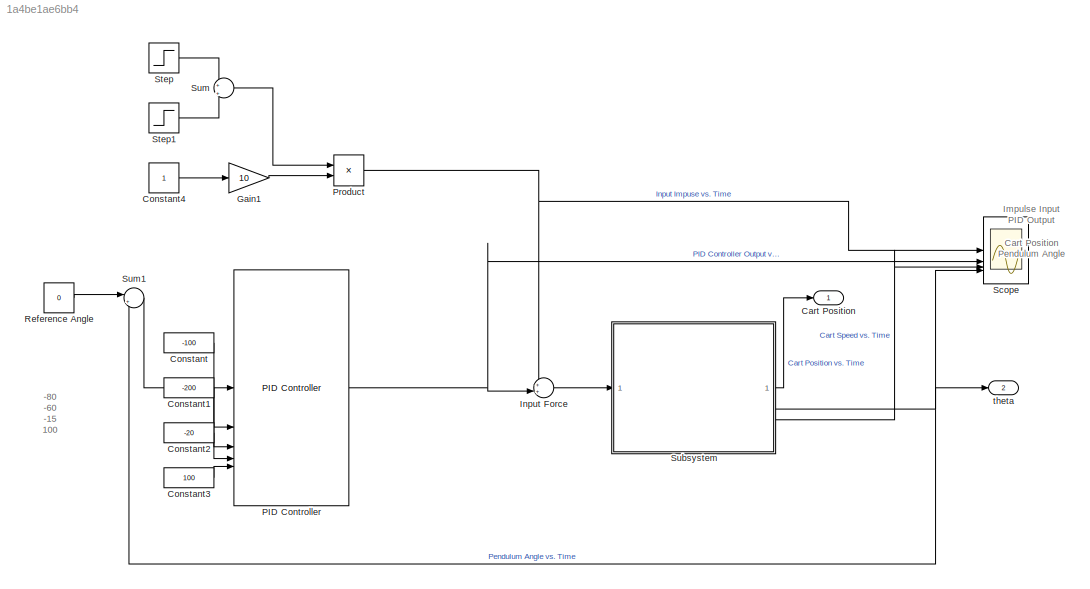
MODEL slx_1a4be1ae6bb4
KIND model
CONFIG AbsTol = 1e-3
CONFIG EnableMultiTasking = on
CONFIG FixedStep = auto
CONFIG MaxStep = 0.002
CONFIG MinStep = 0.001
CONFIG RelTol = 1e-3
CONFIG SampleTimeConstraint = Unconstrained
CONFIG SolverName = VariableStepAuto
CONFIG StartTime = 0.0
CONFIG StopTime = 10
BLOCK [Outport] Cart Position
BLOCK [Constant] Constant
  Value = -100
BLOCK [Constant] Constant1
  Value = -200
BLOCK [Constant] Constant2
  Value = -20
BLOCK [Constant] Constant3
  Value = 100
BLOCK [Constant] Constant4
BLOCK [Gain] Gain1
  Gain = 10
BLOCK [Sum] Input Force
  Inputs = ++|
BLOCK [Reference] PID Controller  REF=slpidlib/PID Controller
  LibrarySourceBlock = simulink/Continuous/PID Controller
  SourceBlock = slpidlib/PID Controller
  SourceType = PID 1dof
BLOCK [Product] Product
BLOCK [Constant] Reference Angle
  Value = 0
BLOCK [Scope] Scope
  Floating = off
  NumInputPorts = 4
  ScopeSpecificationString = Simulink.scopes.TimeScopeBlockCfg('CurrentConfiguration', extmgr.ConfigurationSet(extmgr.Configuration('Core','General UI',true,'FigureColor',[1 0.968627450980392 0.92156862745098]),extmgr.Configuration('Core','Source UI',true),extmgr.Configuration('Sources','WiredSimulink',true),extmgr.Configuration('Visuals','Time Domain',true,'TimeAxisLabels','All','SerializedDisplays',{struct('MinYLimReal','-0...<+4484ch>
BLOCK [Step] Step
  SampleTime = 0
BLOCK [Step] Step1
  After = -1
  SampleTime = 0
  Time = 1.5
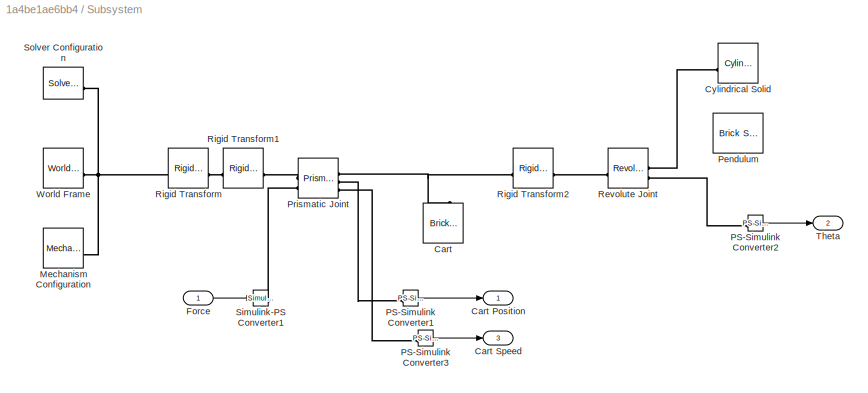
BLOCK [SubSystem] Subsystem
BLOCK [Reference] Subsystem/Cart  REF=sm_lib/Body Elements/Brick Solid
  SourceBlock = sm_lib/Body Elements/Brick Solid
  SourceType = Brick Solid
BLOCK [Outport] Subsystem/Cart Position
BLOCK [Outport] Subsystem/Cart Speed
  Port = 3
BLOCK [Reference] Subsystem/Cylindrical Solid  REF=sm_lib/Body Elements/Cylindrical Solid
  SourceBlock = sm_lib/Body Elements/Cylindrical Solid
  SourceType = Cylindrical Solid
BLOCK [Inport] Subsystem/Force
BLOCK [Reference] Subsystem/Mechanism Configuration  REF=sm_lib/Utilities/Mechanism
Configuration
  SourceBlock = sm_lib/Utilities/Mechanism\nConfiguration
  SourceType = Mechanism\nConfiguration
BLOCK [Reference] Subsystem/PS-Simulink Converter1  REF=nesl_utility/PS-Simulink
Converter
  SourceBlock = nesl_utility/PS-Simulink\nConverter
  SourceType = PS-Simulink\nConverter
BLOCK [Reference] Subsystem/PS-Simulink Converter2  REF=nesl_utility/PS-Simulink
Converter
  SourceBlock = nesl_utility/PS-Simulink\nConverter
  SourceType = PS-Simulink\nConverter
BLOCK [Reference] Subsystem/PS-Simulink Converter3  REF=nesl_utility/PS-Simulink
Converter
  SourceBlock = nesl_utility/PS-Simulink\nConverter
  SourceType = PS-Simulink\nConverter
BLOCK [Reference] Subsystem/Pendulum  REF=sm_lib/Body Elements/Brick Solid
  Commented = on
  SourceBlock = sm_lib/Body Elements/Brick Solid
  SourceType = Brick Solid
BLOCK [Reference] Subsystem/Prismatic Joint  REF=sm_lib/Joints/Prismatic
Joint
  SourceBlock = sm_lib/Joints/Prismatic\nJoint
  SourceType = Prismatic\nJoint
BLOCK [Reference] Subsystem/Revolute Joint  REF=sm_lib/Joints/Revolute Joint
  SourceBlock = sm_lib/Joints/Revolute Joint
  SourceType = Revolute Joint
BLOCK [Reference] Subsystem/Rigid Transform  REF=sm_lib/Frames and
Transforms/Rigid
Transform
  SourceBlock = sm_lib/Frames and\nTransforms/Rigid\nTransform
  SourceType = Rigid\nTransform
BLOCK [Reference] Subsystem/Rigid Transform1  REF=sm_lib/Frames and
Transforms/Rigid
Transform
  SourceBlock = sm_lib/Frames and\nTransforms/Rigid\nTransform
  SourceType = Rigid\nTransform
BLOCK [Reference] Subsystem/Rigid Transform2  REF=sm_lib/Frames and
Transforms/Rigid
Transform
  SourceBlock = sm_lib/Frames and\nTransforms/Rigid\nTransform
  SourceType = Rigid\nTransform
BLOCK [Reference] Subsystem/Simulink-PS Converter1  REF=nesl_utility/Simulink-PS
Converter
  SourceBlock = nesl_utility/Simulink-PS\nConverter
  SourceType = Simulink-PS\nConverter
BLOCK [Reference] Subsystem/Solver Configuration  REF=nesl_utility/Solver
Configuration
  SourceBlock = nesl_utility/Solver\nConfiguration
  SourceType = Solver\nConfiguration
BLOCK [Outport] Subsystem/Theta
  Port = 2
BLOCK [Reference] Subsystem/World Frame  REF=sm_lib/Frames and
Transforms/World Frame
  SourceBlock = sm_lib/Frames and\nTransforms/World Frame
  SourceType = World Frame
BLOCK [Sum] Sum
  Inputs = +|+
BLOCK [Sum] Sum1
  Inputs = |+-
BLOCK [Outport] theta
  Port = 2
ANNOTATION (root): -80 -60 -15 100
ANNOTATION (root): Impulse Input PID Output Cart Position Pendulum Angle
LINE Constant1:1 -> PID Controller:3
LINE Constant2:1 -> PID Controller:4
LINE Constant3:1 -> PID Controller:5
LINE Constant4:1 -> Gain1:1
LINE Constant:1 -> PID Controller:2
LINE Gain1:1 -> Product:2
LINE Input Force:1 -> Subsystem:1
NET PID Controller:1 -> Input Force:2, Scope:2
NET Product:1 -> Input Force:1, Scope:1
LINE Reference Angle:1 -> Sum1:1
LINE Step1:1 -> Sum:2
LINE Step:1 -> Sum:1
LINE Subsystem/Force:1 -> Subsystem/Simulink-PS Converter1:1
LINE Subsystem/PS-Simulink Converter1:1 -> Subsystem/Cart Position:1
LINE Subsystem/PS-Simulink Converter2:1 -> Subsystem/Theta:1
LINE Subsystem/PS-Simulink Converter3:1 -> Subsystem/Cart Speed:1
LINE Subsystem:1 -> Cart Position:1
NET Subsystem:2 -> Scope:4, Sum1:2, theta:1
LINE Subsystem:3 -> Scope:3
LINE Sum1:1 -> PID Controller:1
LINE Sum:1 -> Product:1
PNET net1: Subsystem/Cart:RConn1 -- Subsystem/Prismatic Joint:RConn1 -- Subsystem/Rigid Transform2:LConn1
PLINE Subsystem/Cylindrical Solid:LConn1 -- Subsystem/Revolute Joint:RConn1
PNET net2: Subsystem/Mechanism Configuration:RConn1 -- Subsystem/Rigid Transform:LConn1 -- Subsystem/Solver Configuration:RConn1 -- Subsystem/World Frame:RConn1
PLINE Subsystem/PS-Simulink Converter1:LConn1 -- Subsystem/Prismatic Joint:RConn2
PLINE Subsystem/PS-Simulink Converter2:LConn1 -- Subsystem/Revolute Joint:RConn2
PLINE Subsystem/PS-Simulink Converter3:LConn1 -- Subsystem/Prismatic Joint:RConn3
PLINE Subsystem/Prismatic Joint:LConn1 -- Subsystem/Rigid Transform1:RConn1
PLINE Subsystem/Prismatic Joint:LConn2 -- Subsystem/Simulink-PS Converter1:RConn1
PLINE Subsystem/Revolute Joint:LConn1 -- Subsystem/Rigid Transform2:RConn1
PLINE Subsystem/Rigid Transform1:LConn1 -- Subsystem/Rigid Transform:RConn1
note: NET lines group one-source signal fan-out (src -> all destinations, sorted); 1:1 wires keep LINE; PNET lines group multi-terminal physical nets as a canonical sorted terminal list (undirected conserving connections); 2-terminal nets keep the pairwise PLINE form
